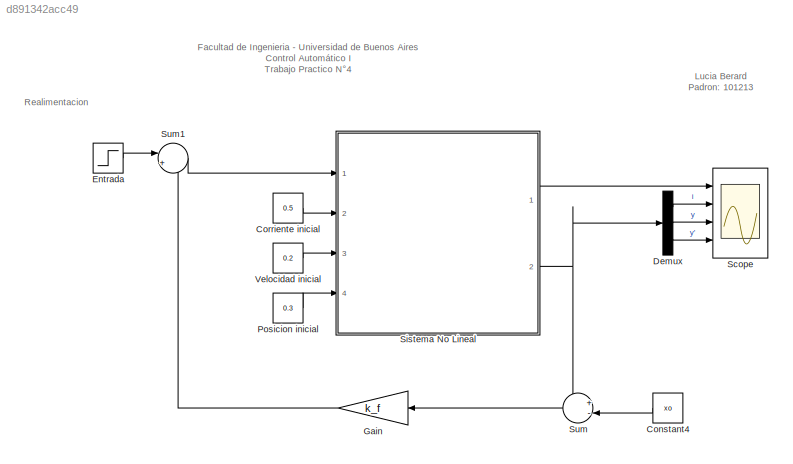
MODEL slx_d891342acc49
KIND model
CONFIG AbsTol = auto
CONFIG EnableMultiTasking = off
CONFIG FixedStep = auto
CONFIG MaxStep = auto
CONFIG MinStep = auto
CONFIG RelTol = 1e-3
CONFIG SampleTimeConstraint = Unconstrained
CONFIG Solver = VariableStepAuto
CONFIG SolverName = VariableStepAuto
CONFIG StartTime = 0.0
CONFIG StopTime = 1
BLOCK [Constant] Constant4
  Value = xo
BLOCK [Constant] Corriente inicial
  Value = 0.5
BLOCK [Demux] Demux
  DisplayOption = bar
  Outputs = 3
  Ports = [1, 3]
BLOCK [Step] Entrada
  SampleTime = 0.001
  Time = 0
BLOCK [Gain] Gain
  Gain = k_f
  Multiplication = Matrix(K*u)
  OutDataTypeStr = Inherit: Inherit via internal rule
  ParamDataTypeStr = Inherit: Inherit via internal rule
  SaturateOnIntegerOverflow = off
BLOCK [Constant] Posicion inicial
  Value = 0.3
BLOCK [Scope] Scope 
  Floating = off
  NumInputPorts = 4
  Ports = [4]
  ScopeSpecificationString = Simulink.scopes.TimeScopeBlockCfg('CurrentConfiguration', extmgr.ConfigurationSet(extmgr.Configuration('Core','General UI',true,'FigureColor',[0.831372549019608 0.815686274509804 0.784313725490196]),extmgr.Configuration('Core','Source UI',true),extmgr.Configuration('Sources','WiredSimulink',true),extmgr.Configuration('Visuals','Time Domain',true,'SerializedDisplays',{struct('MinYLimReal','-1.29151...<+2040ch>
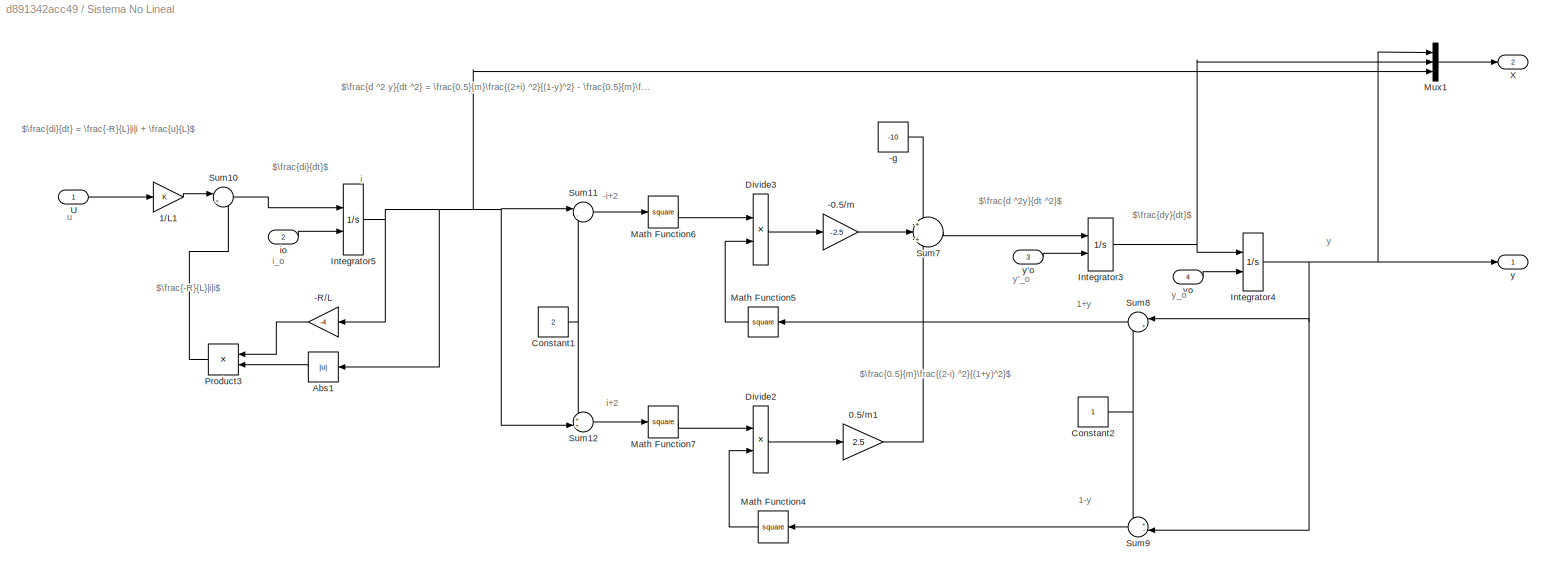
BLOCK [SubSystem] Sistema No Lineal
  Ports = [4, 2]
  RequestExecContextInheritance = off
BLOCK [Gain] Sistema No Lineal/-0.5//m
  Gain = -2.5
  OutDataTypeStr = Inherit: Inherit via internal rule
  ParamDataTypeStr = Inherit: Inherit via internal rule
  SaturateOnIntegerOverflow = off
BLOCK [Gain] Sistema No Lineal/-R//L
  Gain = -4
  OutDataTypeStr = Inherit: Inherit via internal rule
  ParamDataTypeStr = Inherit: Inherit via internal rule
  SaturateOnIntegerOverflow = off
BLOCK [Constant] Sistema No Lineal/-g
  Value = -10
BLOCK [Gain] Sistema No Lineal/0.5//m1
  Gain = 2.5
  OutDataTypeStr = Inherit: Inherit via internal rule
  ParamDataTypeStr = Inherit: Inherit via internal rule
  SaturateOnIntegerOverflow = off
BLOCK [Gain] Sistema No Lineal/1//L1
  OutDataTypeStr = Inherit: Inherit via internal rule
  ParamDataTypeStr = Inherit: Inherit via internal rule
  SaturateOnIntegerOverflow = off
BLOCK [Abs] Sistema No Lineal/Abs1
  SaturateOnIntegerOverflow = off
BLOCK [Constant] Sistema No Lineal/Constant1
  Value = 2
BLOCK [Constant] Sistema No Lineal/Constant2
BLOCK [Product] Sistema No Lineal/Divide2
  InputSameDT = off
  Inputs = */
  OutDataTypeStr = Inherit: Inherit via internal rule
  Ports = [2, 1]
  RndMeth = Floor
  SaturateOnIntegerOverflow = off
BLOCK [Product] Sistema No Lineal/Divide3
  InputSameDT = off
  Inputs = */
  OutDataTypeStr = Inherit: Inherit via internal rule
  Ports = [2, 1]
  RndMeth = Floor
  SaturateOnIntegerOverflow = off
BLOCK [Integrator] Sistema No Lineal/Integrator3
  InitialConditionSource = external
  Ports = [2, 1]
BLOCK [Integrator] Sistema No Lineal/Integrator4
  InitialConditionSource = external
  LowerSaturationLimit = -1
  Ports = [2, 1]
  UpperSaturationLimit = 1
BLOCK [Integrator] Sistema No Lineal/Integrator5
  InitialConditionSource = external
  Ports = [2, 1]
BLOCK [Math] Sistema No Lineal/Math Function4
  Operator = square
  Ports = [1, 1]
BLOCK [Math] Sistema No Lineal/Math Function5
  Operator = square
  Ports = [1, 1]
BLOCK [Math] Sistema No Lineal/Math Function6
  Operator = square
  Ports = [1, 1]
BLOCK [Math] Sistema No Lineal/Math Function7
  Operator = square
  Ports = [1, 1]
BLOCK [Mux] Sistema No Lineal/Mux1
  DisplayOption = bar
  Inputs = 3
  Ports = [3, 1]
BLOCK [Product] Sistema No Lineal/Product3
  InputSameDT = off
  OutDataTypeStr = Inherit: Inherit via internal rule
  Ports = [2, 1]
  RndMeth = Floor
  SaturateOnIntegerOverflow = off
BLOCK [Sum] Sistema No Lineal/Sum10
  IconShape = round
  InputSameDT = off
  Inputs = |++
  OutDataTypeStr = Inherit: Inherit via internal rule
  Ports = [2, 1]
  SaturateOnIntegerOverflow = off
BLOCK [Sum] Sistema No Lineal/Sum11
  IconShape = round
  InputSameDT = off
  Inputs = |-+
  OutDataTypeStr = Inherit: Inherit via internal rule
  Ports = [2, 1]
  SaturateOnIntegerOverflow = off
BLOCK [Sum] Sistema No Lineal/Sum12
  IconShape = round
  InputSameDT = off
  Inputs = ++|
  OutDataTypeStr = Inherit: Inherit via internal rule
  Ports = [2, 1]
  SaturateOnIntegerOverflow = off
BLOCK [Sum] Sistema No Lineal/Sum7
  IconShape = round
  InputSameDT = off
  Inputs = +|+|+
  OutDataTypeStr = Inherit: Inherit via internal rule
  Ports = [3, 1]
  SaturateOnIntegerOverflow = off
BLOCK [Sum] Sistema No Lineal/Sum8
  IconShape = round
  InputSameDT = off
  Inputs = |++
  OutDataTypeStr = Inherit: Inherit via internal rule
  Ports = [2, 1]
  SaturateOnIntegerOverflow = off
BLOCK [Sum] Sistema No Lineal/Sum9
  IconShape = round
  InputSameDT = off
  Inputs = +-|
  OutDataTypeStr = Inherit: Inherit via internal rule
  Ports = [2, 1]
  SaturateOnIntegerOverflow = off
BLOCK [Inport] Sistema No Lineal/U
  IconDisplay = Signal name
  OutDataTypeStr = double
BLOCK [Outport] Sistema No Lineal/X
  IconDisplay = Port number
  Port = 2
BLOCK [Inport] Sistema No Lineal/io
  IconDisplay = Signal name
  OutDataTypeStr = double
  Port = 2
BLOCK [Outport] Sistema No Lineal/y 
  IconDisplay = Port number
BLOCK [Inport] Sistema No Lineal/y'o
  IconDisplay = Signal name
  Port = 3
BLOCK [Inport] Sistema No Lineal/yo
  IconDisplay = Signal name
  Port = 4
BLOCK [Sum] Sum
  IconShape = round
  InputSameDT = off
  Inputs = +-|
  OutDataTypeStr = Inherit: Inherit via internal rule
  Ports = [2, 1]
  SaturateOnIntegerOverflow = off
BLOCK [Sum] Sum1
  IconShape = round
  InputSameDT = off
  Inputs = |+-
  OutDataTypeStr = Inherit: Inherit via internal rule
  Ports = [2, 1]
  SaturateOnIntegerOverflow = off
BLOCK [Constant] Velocidad inicial
  Value = 0.2
ANNOTATION (root): Facultad de Ingenieria - Universidad de Buenos Aires Control Automático I Trabajo Practico N°4
ANNOTATION (root): Lucia Berard Padron: 101213
ANNOTATION (root): Realimentacion
ANNOTATION Sistema No Lineal: -i+2
ANNOTATION Sistema No Lineal: 1+y
ANNOTATION Sistema No Lineal: 1-y
ANNOTATION Sistema No Lineal: $\frac{-R}{L}|i|i$
ANNOTATION Sistema No Lineal: $\frac{0.5}{m}\frac{(2-i) ^2}{(1+y)^2}$
ANNOTATION Sistema No Lineal: $\frac{d ^2 y}{dt ^2} = \frac{0.5}{m}\frac{(2+i) ^2}{(1-y)^2} - \frac{0.5}{m}\frac{(2-i) ^2}{(1+y)^2} -g$
ANNOTATION Sistema No Lineal: $\frac{d ^2y}{dt ^2}$
ANNOTATION Sistema No Lineal: $\frac{di}{dt} = \frac{-R}{L}|i|i + \frac{u}{L}$
ANNOTATION Sistema No Lineal: $\frac{di}{dt}$
ANNOTATION Sistema No Lineal: $\frac{dy}{dt}$
ANNOTATION Sistema No Lineal: i
ANNOTATION Sistema No Lineal: i+2
ANNOTATION Sistema No Lineal: i_o
ANNOTATION Sistema No Lineal: u
ANNOTATION Sistema No Lineal: y
ANNOTATION Sistema No Lineal: y'_o
ANNOTATION Sistema No Lineal: y_o
LINE Constant4:1 -> Sum:2
LINE Corriente inicial:1 -> Sistema No Lineal:2
LINE Demux:1 -> Scope :2
LINE Demux:2 -> Scope :3
LINE Demux:3 -> Scope :4
LINE Entrada:1 -> Sum1:1
LINE Gain:1 -> Sum1:2
LINE Posicion inicial:1 -> Sistema No Lineal:4
LINE Sistema No Lineal/-0.5//m:1 -> Sistema No Lineal/Sum7:2
LINE Sistema No Lineal/-R//L:1 -> Sistema No Lineal/Product3:1
LINE Sistema No Lineal/-g:1 -> Sistema No Lineal/Sum7:1
LINE Sistema No Lineal/0.5//m1:1 -> Sistema No Lineal/Sum7:3
LINE Sistema No Lineal/1//L1:1 -> Sistema No Lineal/Sum10:1
LINE Sistema No Lineal/Abs1:1 -> Sistema No Lineal/Product3:2
NET Sistema No Lineal/Constant1:1 -> Sistema No Lineal/Sum11:2, Sistema No Lineal/Sum12:1
NET Sistema No Lineal/Constant2:1 -> Sistema No Lineal/Sum8:2, Sistema No Lineal/Sum9:1
LINE Sistema No Lineal/Divide2:1 -> Sistema No Lineal/0.5//m1:1
LINE Sistema No Lineal/Divide3:1 -> Sistema No Lineal/-0.5//m:1
NET Sistema No Lineal/Integrator3:1 -> Sistema No Lineal/Integrator4:1, Sistema No Lineal/Mux1:2
NET Sistema No Lineal/Integrator4:1 -> Sistema No Lineal/Mux1:1, Sistema No Lineal/Sum8:1, Sistema No Lineal/Sum9:2, Sistema No Lineal/y :1
NET Sistema No Lineal/Integrator5:1 -> Sistema No Lineal/-R//L:1, Sistema No Lineal/Abs1:1, Sistema No Lineal/Mux1:3, Sistema No Lineal/Sum11:1, Sistema No Lineal/Sum12:2
LINE Sistema No Lineal/Math Function4:1 -> Sistema No Lineal/Divide2:2
LINE Sistema No Lineal/Math Function5:1 -> Sistema No Lineal/Divide3:2
LINE Sistema No Lineal/Math Function6:1 -> Sistema No Lineal/Divide3:1
LINE Sistema No Lineal/Math Function7:1 -> Sistema No Lineal/Divide2:1
LINE Sistema No Lineal/Mux1:1 -> Sistema No Lineal/X:1
LINE Sistema No Lineal/Product3:1 -> Sistema No Lineal/Sum10:2
LINE Sistema No Lineal/Sum10:1 -> Sistema No Lineal/Integrator5:1
LINE Sistema No Lineal/Sum11:1 -> Sistema No Lineal/Math Function6:1
LINE Sistema No Lineal/Sum12:1 -> Sistema No Lineal/Math Function7:1
LINE Sistema No Lineal/Sum7:1 -> Sistema No Lineal/Integrator3:1
LINE Sistema No Lineal/Sum8:1 -> Sistema No Lineal/Math Function5:1
LINE Sistema No Lineal/Sum9:1 -> Sistema No Lineal/Math Function4:1
LINE Sistema No Lineal/U:1 -> Sistema No Lineal/1//L1:1
LINE Sistema No Lineal/io:1 -> Sistema No Lineal/Integrator5:2
LINE Sistema No Lineal/y'o:1 -> Sistema No Lineal/Integrator3:2
LINE Sistema No Lineal/yo:1 -> Sistema No Lineal/Integrator4:2
LINE Sistema No Lineal:1 -> Scope :1
NET Sistema No Lineal:2 -> Demux:1, Sum:1
LINE Sum1:1 -> Sistema No Lineal:1
LINE Sum:1 -> Gain:1
LINE Velocidad inicial:1 -> Sistema No Lineal:3
note: NET lines group one-source signal fan-out (src -> all destinations, sorted); 1:1 wires keep LINE
